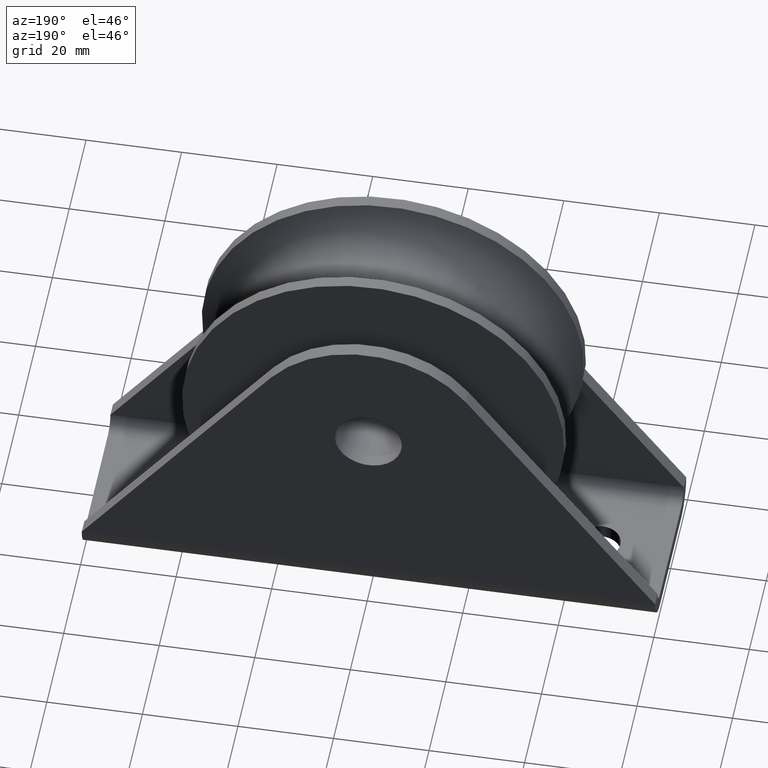
[diagram: clean part render]
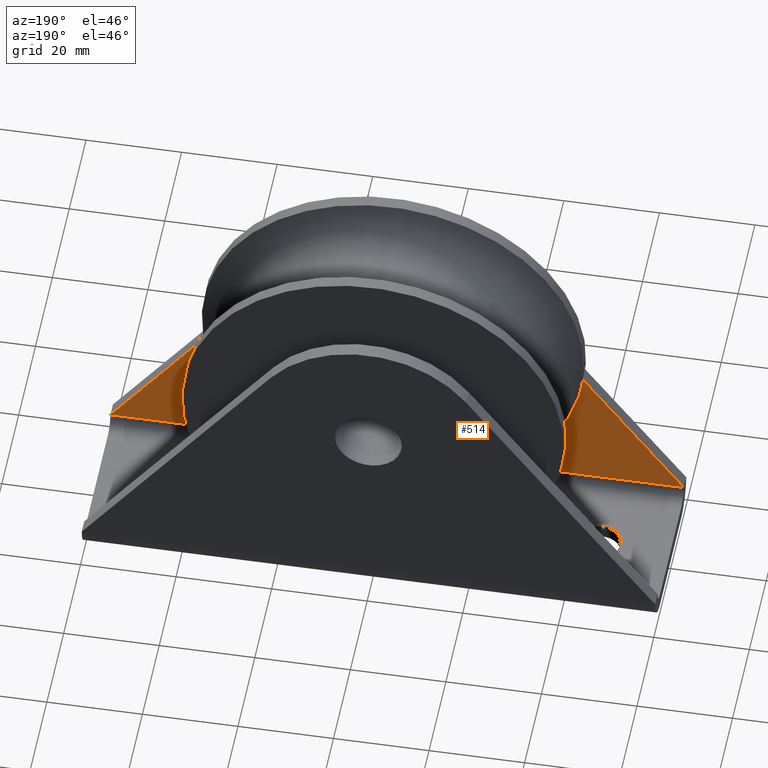
[diagram: same view with one face highlighted and labeled with its STEP entity id]
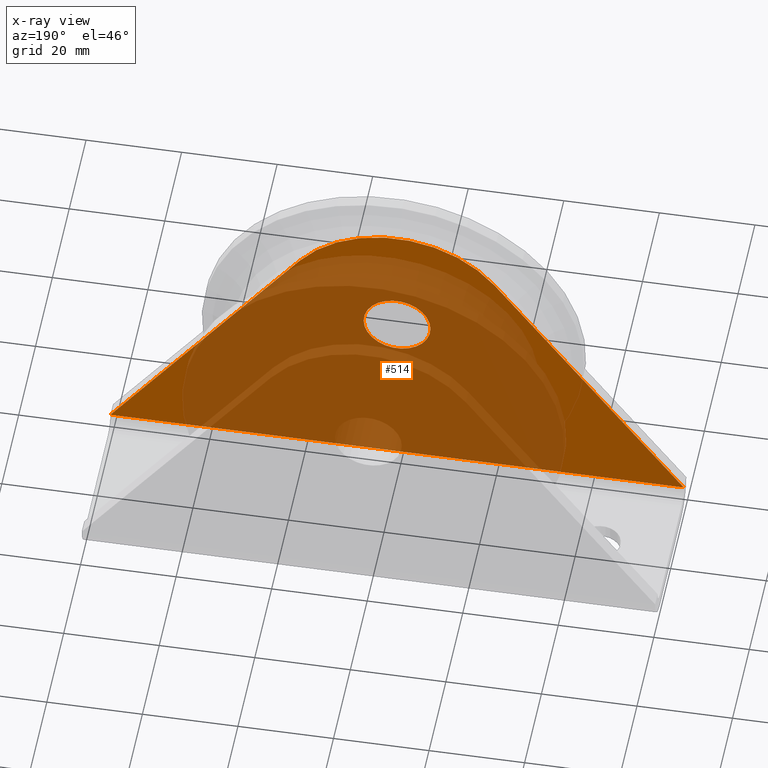
[diagram: x-ray of the same camera — body ghosted, the highlighted face saturated]
A machine part, auxiliary view. The second image highlights one B-rep face of the part: STEP entity #514.
The next image is the same camera in x-ray: the body ghosted, the highlighted face saturated — about 79% of this face is hidden behind the body in this view.
In plain terms, the highlighted planar face has unit normal (0, 1, 0).
Its self-contained STEP definition (entity closure, byte-faithful):
#38=LINE('',#827,#70);
#41=LINE('',#833,#73);
#47=LINE('',#858,#79);
#70=VECTOR('',#652,66.);
#73=VECTOR('',#657,66.);
#79=VECTOR('',#687,120.);
#98=PLANE('',#567);
#118=FACE_BOUND('',#190,.T.);
#147=FACE_OUTER_BOUND('',#189,.T.);
#189=EDGE_LOOP('',(#408,#409,#410,#411));
#190=EDGE_LOOP('',(#412));
#234=CIRCLE('',#552,25.5);
#239=CIRCLE('',#563,7.);
#270=VERTEX_POINT('',#817);
#271=VERTEX_POINT('',#818);
#274=VERTEX_POINT('',#826);
#276=VERTEX_POINT('',#832);
#281=VERTEX_POINT('',#849);
#314=EDGE_CURVE('',#270,#271,#234,.T.);
#318=EDGE_CURVE('',#274,#270,#38,.T.);
#321=EDGE_CURVE('',#271,#276,#41,.T.);
#329=EDGE_CURVE('',#281,#281,#239,.T.);
#333=EDGE_CURVE('',#276,#274,#47,.T.);
#408=ORIENTED_EDGE('',*,*,#321,.T.);
#409=ORIENTED_EDGE('',*,*,#333,.T.);
#410=ORIENTED_EDGE('',*,*,#318,.T.);
#411=ORIENTED_EDGE('',*,*,#314,.T.);
#412=ORIENTED_EDGE('',*,*,#329,.T.);
#514=ADVANCED_FACE('',(#147,#118),#98,.T.);
#552=AXIS2_PLACEMENT_3D('',#819,#644,#645);
#563=AXIS2_PLACEMENT_3D('',#850,#676,#677);
#567=AXIS2_PLACEMENT_3D('',#857,#685,#686);
#644=DIRECTION('center_axis',(4.50683757946983E-35,1.,6.65755231128242E-17));
#645=DIRECTION('ref_axis',(1.,0.,3.00045069437739E-51));
#652=DIRECTION('',(0.6,-5.32604184902594E-17,0.8));
#657=DIRECTION('',(0.6,5.32604184902594E-17,-0.8));
#676=DIRECTION('center_axis',(-4.50683757946983E-35,-1.,-6.65755231128242E-17));
#677=DIRECTION('ref_axis',(1.,4.50683757946983E-35,3.00045069437739E-51));
#685=DIRECTION('center_axis',(4.50683757946983E-35,1.,6.65755231128242E-17));
#686=DIRECTION('ref_axis',(1.,0.,0.));
#687=DIRECTION('',(-1.,4.50683757946983E-35,2.75964210798737E-51));
#817=CARTESIAN_POINT('',(-20.4,-15.5,58.8));
#818=CARTESIAN_POINT('',(20.4,-15.5,58.8));
#819=CARTESIAN_POINT('Origin',(0.,-15.5,43.5));
#826=CARTESIAN_POINT('',(-60.,-15.5,6.));
#827=CARTESIAN_POINT('',(-22.6543008158105,-15.5,55.7942655789194));
#832=CARTESIAN_POINT('',(60.,-15.5,6.));
#833=CARTESIAN_POINT('',(42.4543008158105,-15.5,29.3942655789194));
#849=CARTESIAN_POINT('',(-7.,-15.5,43.5));
#850=CARTESIAN_POINT('Origin',(-1.35205127384095E-34,-15.5,43.5));
#857=CARTESIAN_POINT('Origin',(0.,-15.5,34.107079934123));
#858=CARTESIAN_POINT('',(2.97451280245009E-35,-15.5,6.));